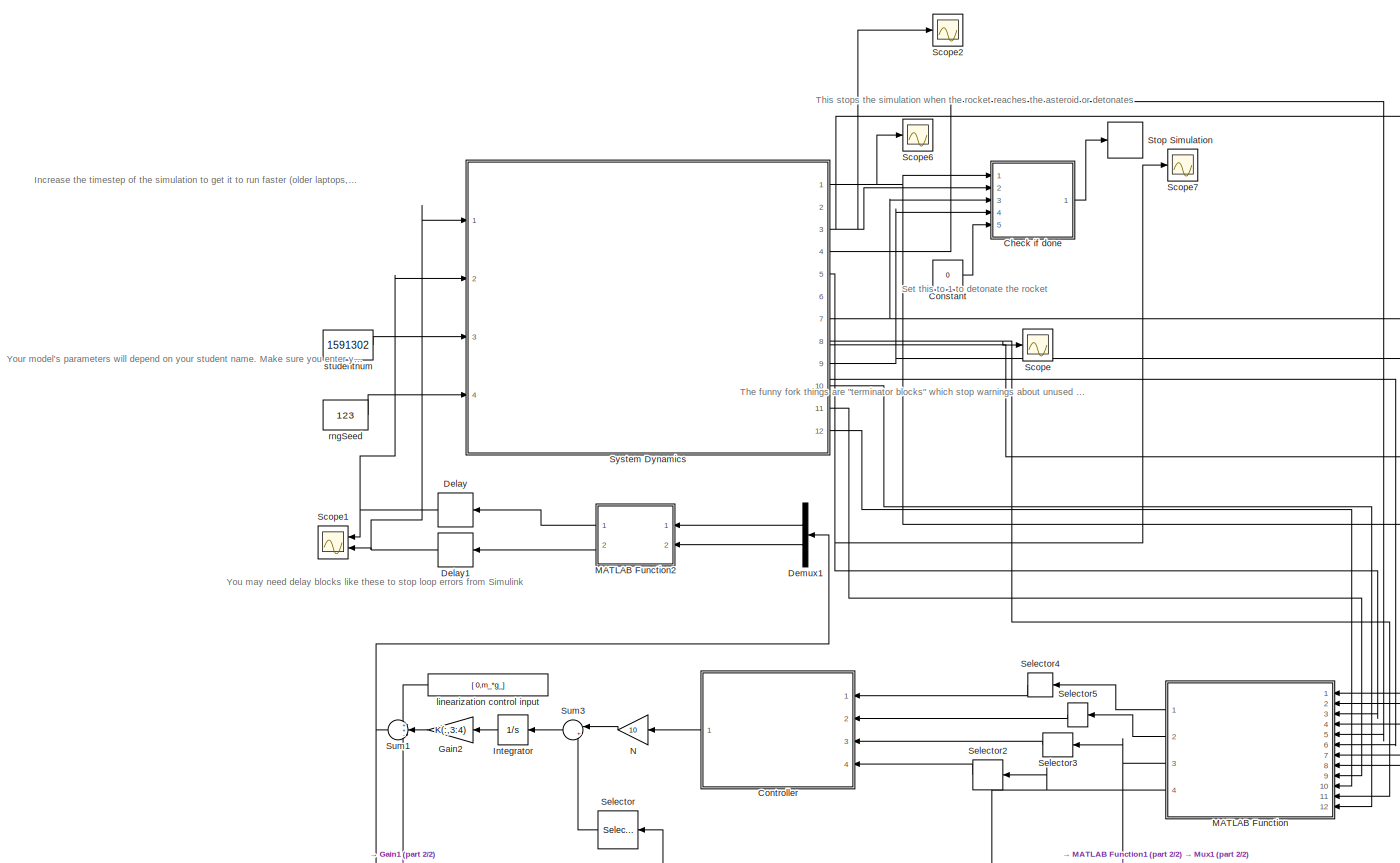
[diagram: root canvas - part 1/2, most of the canvas]
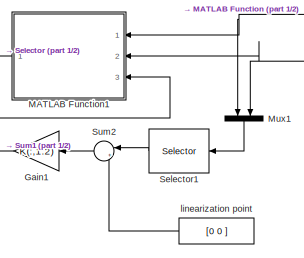
[diagram: root canvas - part 2/2, bottom center region]
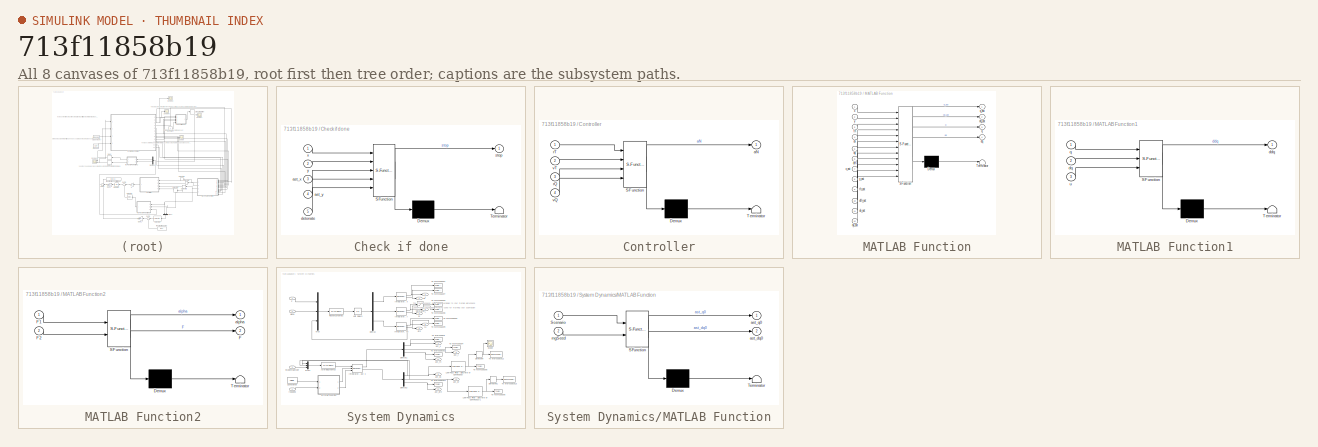
[diagram: thumbnail index - all 8 canvases of the model, root first then tree order]
MODEL slx_713f11858b19
KIND model
CONFIG AbsTol = auto
CONFIG EnableMultiTasking = off
CONFIG FixedStep = 0.001
CONFIG MaxStep = auto
CONFIG MinStep = auto
CONFIG RelTol = 1e-3
CONFIG SampleTimeConstraint = Unconstrained
CONFIG Solver = ode4
CONFIG SolverName = ode4
CONFIG StartTime = 0.0
CONFIG StopTime = 45
BLOCK [SubSystem] Check if done
  ErrorFcn = Stateflow.Translate.translate
  PermitHierarchicalResolution = ExplicitOnly
  Ports = [5, 1]
  RequestExecContextInheritance = off
  SFBlockType = MATLAB Function
  TreatAsAtomicUnit = on
BLOCK [Demux] Check if done/ Demux 
  Outputs = 1
  Ports = [1, 1]
BLOCK [S-Function] Check if done/ SFunction 
  EnableBusSupport = on
  FunctionName = sf_sfun
  PortCounts = [5 2]
  Ports = [5, 2]
  SFcnIsStateOwnerBlock = off
  SFunctionDeploymentMode = off
  Tag = Stateflow S-Function AsteroidImpact_2018a_original 4
BLOCK [Terminator] Check if done/ Terminator 
BLOCK [Inport] Check if done/ast_x
  IconDisplay = Port number
  Port = 3
BLOCK [Inport] Check if done/ast_y
  IconDisplay = Port number
  Port = 4
BLOCK [Inport] Check if done/detonate
  IconDisplay = Port number
  Port = 5
BLOCK [Outport] Check if done/stop
  IconDisplay = Port number
BLOCK [Inport] Check if done/x
  IconDisplay = Port number
BLOCK [Inport] Check if done/y
  IconDisplay = Port number
  Port = 2
BLOCK [Constant] Constant
  Value = 0
BLOCK [SubSystem] Controller
  ErrorFcn = Stateflow.Translate.translate
  PermitHierarchicalResolution = ExplicitOnly
  Ports = [4, 1]
  RequestExecContextInheritance = off
  SFBlockType = MATLAB Function
  TreatAsAtomicUnit = on
BLOCK [Demux] Controller/ Demux 
  Outputs = 1
  Ports = [1, 1]
BLOCK [S-Function] Controller/ SFunction 
  EnableBusSupport = on
  FunctionName = sf_sfun
  PortCounts = [4 2]
  Ports = [4, 2]
  SFcnIsStateOwnerBlock = off
  SFunctionDeploymentMode = off
  Tag = Stateflow S-Function AsteroidImpact_2018a_original 2
BLOCK [Terminator] Controller/ Terminator 
BLOCK [Outport] Controller/aN
  IconDisplay = Port number
BLOCK [Inport] Controller/rQ
  IconDisplay = Port number
  Port = 3
BLOCK [Inport] Controller/rT
  IconDisplay = Port number
BLOCK [Inport] Controller/vQ
  IconDisplay = Port number
  Port = 4
BLOCK [Inport] Controller/vT
  IconDisplay = Port number
  Port = 2
BLOCK [Delay] Delay
  DelayLength = 1
  InitialCondition = 0
  InputPortMap = u0
  Ports = [1, 1]
BLOCK [Delay] Delay1
  DelayLength = 1
  InitialCondition = 10000
  InputPortMap = u0
  Ports = [1, 1]
BLOCK [Demux] Demux1
  DisplayOption = bar
  Outputs = 2
  Ports = [1, 2]
BLOCK [Gain] Gain1
  Gain = K(:,1:2)
  Multiplication = Matrix(K*u)
  OutDataTypeStr = Inherit: Inherit via internal rule
  ParamDataTypeStr = Inherit: Inherit via internal rule
  SaturateOnIntegerOverflow = off
BLOCK [Gain] Gain2
  Gain = K(:,3:4)
  Multiplication = Matrix(K*u)
  OutDataTypeStr = Inherit: Inherit via internal rule
  ParamDataTypeStr = Inherit: Inherit via internal rule
  SaturateOnIntegerOverflow = off
BLOCK [Integrator] Integrator
  Ports = [1, 1]
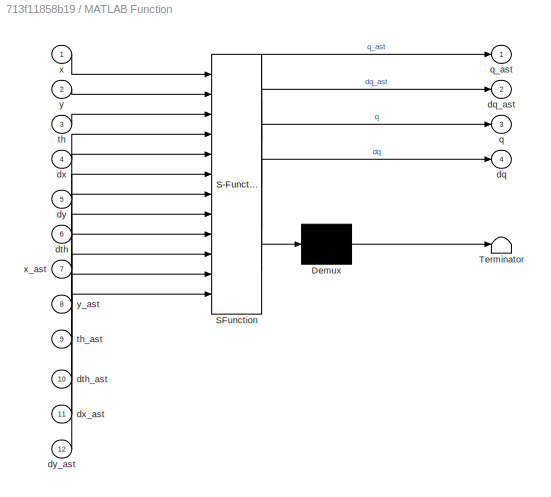
BLOCK [SubSystem] MATLAB Function
  ErrorFcn = Stateflow.Translate.translate
  PermitHierarchicalResolution = ExplicitOnly
  Ports = [12, 4]
  RequestExecContextInheritance = off
  SFBlockType = MATLAB Function
  TreatAsAtomicUnit = on
BLOCK [Demux] MATLAB Function/ Demux 
  Outputs = 1
  Ports = [1, 1]
BLOCK [S-Function] MATLAB Function/ SFunction 
  EnableBusSupport = on
  FunctionName = sf_sfun
  PortCounts = [12 5]
  Ports = [12, 5]
  SFcnIsStateOwnerBlock = off
  SFunctionDeploymentMode = off
  Tag = Stateflow S-Function AsteroidImpact_2018a_original 3
BLOCK [Terminator] MATLAB Function/ Terminator 
BLOCK [Outport] MATLAB Function/dq
  IconDisplay = Port number
  Port = 4
BLOCK [Outport] MATLAB Function/dq_ast
  IconDisplay = Port number
  Port = 2
BLOCK [Inport] MATLAB Function/dth
  IconDisplay = Port number
  Port = 6
BLOCK [Inport] MATLAB Function/dth_ast
  IconDisplay = Port number
  Port = 10
BLOCK [Inport] MATLAB Function/dx
  IconDisplay = Port number
  Port = 4
BLOCK [Inport] MATLAB Function/dx_ast
  IconDisplay = Port number
  Port = 11
BLOCK [Inport] MATLAB Function/dy
  IconDisplay = Port number
  Port = 5
BLOCK [Inport] MATLAB Function/dy_ast
  IconDisplay = Port number
  Port = 12
BLOCK [Outport] MATLAB Function/q
  IconDisplay = Port number
  Port = 3
BLOCK [Outport] MATLAB Function/q_ast
  IconDisplay = Port number
BLOCK [Inport] MATLAB Function/th
  IconDisplay = Port number
  Port = 3
BLOCK [Inport] MATLAB Function/th_ast
  IconDisplay = Port number
  Port = 9
BLOCK [Inport] MATLAB Function/x
  IconDisplay = Port number
BLOCK [Inport] MATLAB Function/x_ast
  IconDisplay = Port number
  Port = 7
BLOCK [Inport] MATLAB Function/y
  IconDisplay = Port number
  Port = 2
BLOCK [Inport] MATLAB Function/y_ast
  IconDisplay = Port number
  Port = 8
BLOCK [SubSystem] MATLAB Function1
  ErrorFcn = Stateflow.Translate.translate
  PermitHierarchicalResolution = ExplicitOnly
  Ports = [3, 1]
  RequestExecContextInheritance = off
  SFBlockType = MATLAB Function
  TreatAsAtomicUnit = on
BLOCK [Demux] MATLAB Function1/ Demux 
  Outputs = 1
  Ports = [1, 1]
BLOCK [S-Function] MATLAB Function1/ SFunction 
  EnableBusSupport = on
  FunctionName = sf_sfun
  PortCounts = [3 2]
  Ports = [3, 2]
  SFcnIsStateOwnerBlock = off
  SFunctionDeploymentMode = off
  Tag = Stateflow S-Function AsteroidImpact_2018a_original 5
BLOCK [Terminator] MATLAB Function1/ Terminator 
BLOCK [Outport] MATLAB Function1/ddq
  IconDisplay = Port number
BLOCK [Inport] MATLAB Function1/dq
  IconDisplay = Port number
  Port = 2
BLOCK [Inport] MATLAB Function1/q
  IconDisplay = Port number
BLOCK [Inport] MATLAB Function1/u
  IconDisplay = Port number
  Port = 3
BLOCK [SubSystem] MATLAB Function2
  ErrorFcn = Stateflow.Translate.translate
  PermitHierarchicalResolution = ExplicitOnly
  Ports = [2, 2]
  RequestExecContextInheritance = off
  SFBlockType = MATLAB Function
  TreatAsAtomicUnit = on
BLOCK [Demux] MATLAB Function2/ Demux 
  Outputs = 1
  Ports = [1, 1]
BLOCK [S-Function] MATLAB Function2/ SFunction 
  EnableBusSupport = on
  FunctionName = sf_sfun
  PortCounts = [2 3]
  Ports = [2, 3]
  SFcnIsStateOwnerBlock = off
  SFunctionDeploymentMode = off
  Tag = Stateflow S-Function AsteroidImpact_2018a_original 6
BLOCK [Terminator] MATLAB Function2/ Terminator 
BLOCK [Outport] MATLAB Function2/F
  IconDisplay = Port number
  Port = 2
BLOCK [Inport] MATLAB Function2/F1
  IconDisplay = Port number
BLOCK [Inport] MATLAB Function2/F2
  IconDisplay = Port number
  Port = 2
BLOCK [Outport] MATLAB Function2/alpha
  IconDisplay = Port number
BLOCK [Mux] Mux1
  DisplayOption = bar
  Inputs = 2
  Ports = [2, 1]
BLOCK [Gain] N
  Gain = 10
  OutDataTypeStr = Inherit: Inherit via internal rule
  ParamDataTypeStr = Inherit: Inherit via internal rule
  SaturateOnIntegerOverflow = off
BLOCK [Scope] Scope
  Floating = off
  NumInputPorts = 1
  Ports = [1]
  ScopeSpecificationString = Simulink.scopes.TimeScopeBlockCfg('CurrentConfiguration', extmgr.ConfigurationSet(extmgr.Configuration('Core','General UI',true),extmgr.Configuration('Core','Source UI',true),extmgr.Configuration('Sources','WiredSimulink',true),extmgr.Configuration('Visuals','Time Domain',true,'SerializedDisplays',{struct('MinYLimReal','134.6873','MaxYLimReal','187.70967','YLabelReal','','MinYLimMag','134.6873','M...<+1395ch>
BLOCK [Scope] Scope1
  Floating = off
  NumInputPorts = 2
  Ports = [2]
  ScopeSpecificationString = Simulink.scopes.TimeScopeBlockCfg('CurrentConfiguration', extmgr.ConfigurationSet(extmgr.Configuration('Core','General UI',true),extmgr.Configuration('Core','Source UI',true),extmgr.Configuration('Sources','WiredSimulink',true,'DataLoggingVariableName','ScopeData1'),extmgr.Configuration('Visuals','Time Domain',true,'SerializedDisplays',{struct('MinYLimReal','-3609.30994','MaxYLimReal','32480.85139...<+1428ch>
BLOCK [Scope] Scope2
  Floating = off
  NumInputPorts = 1
  Ports = [1]
  ScopeSpecificationString = Simulink.scopes.TimeScopeBlockCfg('CurrentConfiguration', extmgr.ConfigurationSet(extmgr.Configuration('Core','General UI',true),extmgr.Configuration('Core','Source UI',true),extmgr.Configuration('Sources','WiredSimulink',true,'DataLoggingVariableName','ScopeData1'),extmgr.Configuration('Visuals','Time Domain',true,'SerializedDisplays',{struct('MinYLimReal','-287.10112','MaxYLimReal','2583.91005',...<+1394ch>
BLOCK [Scope] Scope6
  Floating = off
  NumInputPorts = 1
  Ports = [1]
  ScopeSpecificationString = Simulink.scopes.TimeScopeBlockCfg('CurrentConfiguration', extmgr.ConfigurationSet(extmgr.Configuration('Core','General UI',true),extmgr.Configuration('Core','Source UI',true),extmgr.Configuration('Sources','WiredSimulink',true,'DataLoggingVariableName','ScopeData1'),extmgr.Configuration('Visuals','Time Domain',true,'SerializedDisplays',{struct('MinYLimReal','-119.27297','MaxYLimReal','1073.22528',...<+1394ch>
BLOCK [Scope] Scope7
  Floating = off
  NumInputPorts = 1
  Ports = [1]
  ScopeSpecificationString = Simulink.scopes.TimeScopeBlockCfg('CurrentConfiguration', extmgr.ConfigurationSet(extmgr.Configuration('Core','General UI',true),extmgr.Configuration('Core','Source UI',true),extmgr.Configuration('Sources','WiredSimulink',true,'DataLoggingVariableName','ScopeData2'),extmgr.Configuration('Visuals','Time Domain',true,'SerializedDisplays',{struct('MinYLimReal','-0.84078','MaxYLimReal','0.09342','YLab...<+1376ch>
BLOCK [Selector] Selector
  IndexOptions = Index vector (dialog)
  Indices = [1 2]
  InputPortWidth = 3
  OutputSizes = 1
  Ports = [1, 1]
BLOCK [Selector] Selector1
  IndexOptions = Index vector (dialog)
  Indices = [3 6]
  InputPortWidth = 6
  OutputSizes = 1
  Ports = [1, 1]
BLOCK [Selector] Selector2
  IndexOptions = Index vector (dialog)
  Indices = [1 2]
  InputPortWidth = 3
  OutputSizes = 1
  Ports = [1, 1]
BLOCK [Selector] Selector3
  IndexOptions = Index vector (dialog)
  Indices = [1 2]
  InputPortWidth = 3
  OutputSizes = 1
  Ports = [1, 1]
BLOCK [Selector] Selector4
  IndexOptions = Index vector (dialog)
  Indices = [1 2]
  InputPortWidth = 3
  OutputSizes = 1
  Ports = [1, 1]
BLOCK [Selector] Selector5
  IndexOptions = Index vector (dialog)
  Indices = [1 2]
  InputPortWidth = 3
  OutputSizes = 1
  Ports = [1, 1]
BLOCK [Stop] Stop Simulation
BLOCK [Sum] Sum1
  IconShape = round
  InputSameDT = off
  Inputs = ++-
  OutDataTypeStr = Inherit: Inherit via internal rule
  Ports = [3, 1]
  SaturateOnIntegerOverflow = off
BLOCK [Sum] Sum2
  IconShape = round
  InputSameDT = off
  Inputs = |+-
  OutDataTypeStr = Inherit: Inherit via internal rule
  Ports = [2, 1]
  SaturateOnIntegerOverflow = off
BLOCK [Sum] Sum3
  IconShape = round
  InputSameDT = off
  Inputs = |+-
  OutDataTypeStr = Inherit: Inherit via internal rule
  Ports = [2, 1]
  SaturateOnIntegerOverflow = off
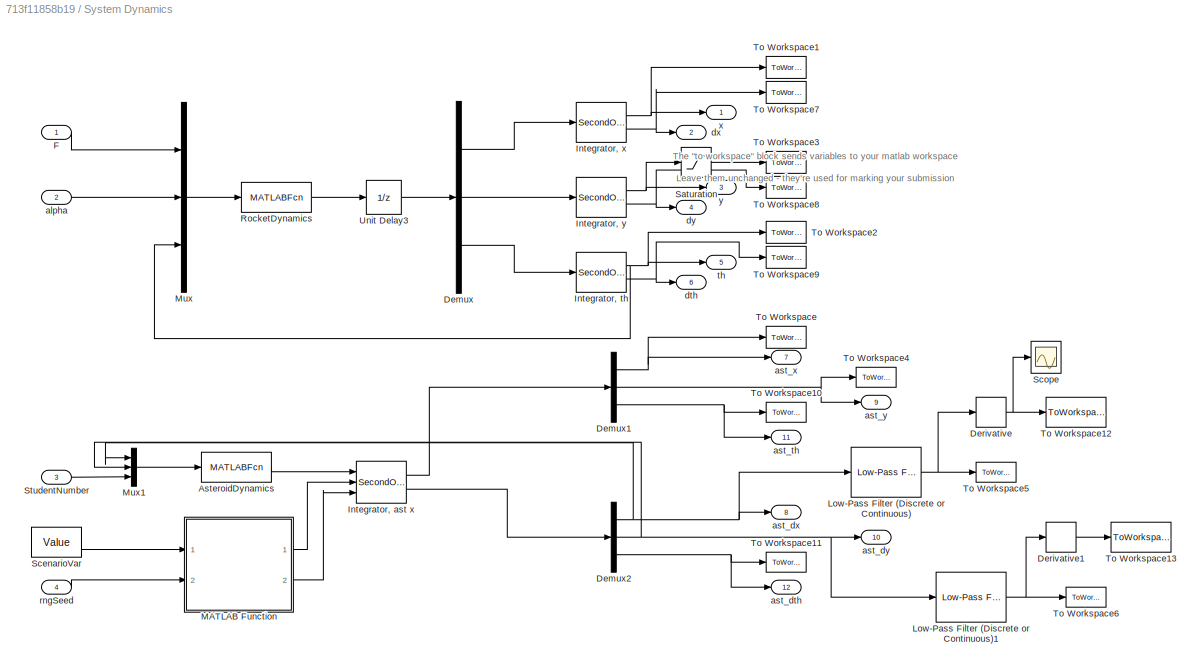
BLOCK [SubSystem] System Dynamics
  Ports = [4, 12]
  RequestExecContextInheritance = off
  TreatAsAtomicUnit = on
BLOCK [MATLABFcn] System Dynamics/AsteroidDynamics
  MATLABFcn = AsteroidDynamics
  OutputDimensions = 3
  Ports = [1, 1]
BLOCK [Demux] System Dynamics/Demux
  DisplayOption = bar
  Outputs = 3
  Ports = [1, 3]
BLOCK [Demux] System Dynamics/Demux1
  DisplayOption = bar
  Outputs = 3
  Ports = [1, 3]
BLOCK [Demux] System Dynamics/Demux2
  DisplayOption = bar
  Outputs = 3
  Ports = [1, 3]
BLOCK [Derivative] System Dynamics/Derivative
BLOCK [Derivative] System Dynamics/Derivative1
BLOCK [Inport] System Dynamics/F
  IconDisplay = Port number
BLOCK [SecondOrderIntegrator] System Dynamics/Integrator, ast x
  ICSourceDXDT = external
  ICSourceX = external
  ICX = x0
  Ports = [3, 2]
BLOCK [SecondOrderIntegrator] System Dynamics/Integrator, th
  ICDXDT = 0
  ICX = 0
  Ports = [1, 2]
BLOCK [SecondOrderIntegrator] System Dynamics/Integrator, x
  ICX = 0
  Ports = [1, 2]
BLOCK [SecondOrderIntegrator] System Dynamics/Integrator, y
  ICX = 0
  Ports = [1, 2]
BLOCK [Reference] System Dynamics/Low-Pass Filter (Discrete or Continuous)  REF=eeGeneralControl/Low-Pass Filter
(Discrete or Continuous)
  Ports = [1, 1]
  SourceBlock = eeGeneralControl/Low-Pass Filter\n(Discrete or Continuous)
  SourceProductBaseCode = PS
  SourceProductName = Simscape Electrical
  SourceType = Low-Pass Filter (Discrete or Continuous)
BLOCK [Reference] System Dynamics/Low-Pass Filter (Discrete or Continuous)1  REF=eeGeneralControl/Low-Pass Filter
(Discrete or Continuous)
  Ports = [1, 1]
  SourceBlock = eeGeneralControl/Low-Pass Filter\n(Discrete or Continuous)
  SourceProductBaseCode = PS
  SourceProductName = Simscape Electrical
  SourceType = Low-Pass Filter (Discrete or Continuous)
BLOCK [SubSystem] System Dynamics/MATLAB Function
  ErrorFcn = Stateflow.Translate.translate
  PermitHierarchicalResolution = ExplicitOnly
  Ports = [2, 2]
  RequestExecContextInheritance = off
  SFBlockType = MATLAB Function
  TreatAsAtomicUnit = on
BLOCK [Demux] System Dynamics/MATLAB Function/ Demux 
  Outputs = 1
  Ports = [1, 1]
BLOCK [S-Function] System Dynamics/MATLAB Function/ SFunction 
  EnableBusSupport = on
  FunctionName = sf_sfun
  PortCounts = [2 3]
  Ports = [2, 3]
  SFcnIsStateOwnerBlock = off
  SFunctionDeploymentMode = off
  Tag = Stateflow S-Function AsteroidImpact_2018a_original 1
BLOCK [Terminator] System Dynamics/MATLAB Function/ Terminator 
BLOCK [Inport] System Dynamics/MATLAB Function/Scenario
  IconDisplay = Port number
BLOCK [Outport] System Dynamics/MATLAB Function/ast_dq0
  IconDisplay = Port number
  Port = 2
BLOCK [Outport] System Dynamics/MATLAB Function/ast_q0
  IconDisplay = Port number
BLOCK [Inport] System Dynamics/MATLAB Function/rngSeed
  IconDisplay = Port number
  Port = 2
BLOCK [Mux] System Dynamics/Mux
  DisplayOption = bar
  Inputs = 3
  Ports = [3, 1]
BLOCK [Mux] System Dynamics/Mux1
  DisplayOption = bar
  Inputs = 3
  Ports = [3, 1]
BLOCK [MATLABFcn] System Dynamics/RocketDynamics
  MATLABFcn = RocketDynamics
  Output1D = off
  Ports = [1, 1]
BLOCK [Saturate] System Dynamics/Saturation
  InputPortMap = u0
  LowerLimit = 0
  Ports = [1, 1]
  UpperLimit = 10000
BLOCK [Constant] System Dynamics/ScenarioVar
  Value = Value
BLOCK [Scope] System Dynamics/Scope
  Floating = off
  NumInputPorts = 1
  Ports = [1]
  ScopeSpecificationString = Simulink.scopes.TimeScopeBlockCfg('CurrentConfiguration', extmgr.ConfigurationSet(extmgr.Configuration('Core','General UI',true),extmgr.Configuration('Core','Source UI',true),extmgr.Configuration('Sources','WiredSimulink',true,'DataLoggingVariableName','ScopeData1'),extmgr.Configuration('Visuals','Time Domain',true,'SerializedDisplays',{struct('MinYLimReal','-2.10989','MaxYLimReal','0.23443','YLab...<+1398ch>
BLOCK [Inport] System Dynamics/StudentNumber
  IconDisplay = Port number
  Port = 3
BLOCK [ToWorkspace] System Dynamics/To Workspace
  FixptAsFi = on
  MaxDataPoints = inf
  Ports = [1]
  SampleTime = -1
  VariableName = ast_x
BLOCK [ToWorkspace] System Dynamics/To Workspace1
  FixptAsFi = on
  MaxDataPoints = inf
  Ports = [1]
  SampleTime = -1
  VariableName = x
BLOCK [ToWorkspace] System Dynamics/To Workspace10
  FixptAsFi = on
  MaxDataPoints = inf
  Ports = [1]
  SampleTime = -1
  VariableName = ast_th
BLOCK [ToWorkspace] System Dynamics/To Workspace11
  FixptAsFi = on
  MaxDataPoints = inf
  Ports = [1]
  SampleTime = -1
  VariableName = ast_dth
BLOCK [ToWorkspace] System Dynamics/To Workspace12
  FixptAsFi = on
  MaxDataPoints = inf
  Ports = [1]
  SampleTime = -1
  SaveFormat = Timeseries
  VariableName = ast_ddx
BLOCK [ToWorkspace] System Dynamics/To Workspace13
  FixptAsFi = on
  MaxDataPoints = inf
  Ports = [1]
  SampleTime = -1
  SaveFormat = Timeseries
  VariableName = ast_ddy
BLOCK [ToWorkspace] System Dynamics/To Workspace2
  FixptAsFi = on
  MaxDataPoints = inf
  Ports = [1]
  SampleTime = -1
  VariableName = th
BLOCK [ToWorkspace] System Dynamics/To Workspace3
  FixptAsFi = on
  MaxDataPoints = inf
  Ports = [1]
  SampleTime = -1
  VariableName = y
BLOCK [ToWorkspace] System Dynamics/To Workspace4
  FixptAsFi = on
  MaxDataPoints = inf
  Ports = [1]
  SampleTime = -1
  VariableName = ast_y
BLOCK [ToWorkspace] System Dynamics/To Workspace5
  FixptAsFi = on
  MaxDataPoints = inf
  Ports = [1]
  SampleTime = -1
  VariableName = ast_dx
BLOCK [ToWorkspace] System Dynamics/To Workspace6
  FixptAsFi = on
  MaxDataPoints = inf
  Ports = [1]
  SampleTime = -1
  VariableName = ast_dy
BLOCK [ToWorkspace] System Dynamics/To Workspace7
  FixptAsFi = on
  MaxDataPoints = inf
  Ports = [1]
  SampleTime = -1
  VariableName = dx
BLOCK [ToWorkspace] System Dynamics/To Workspace8
  FixptAsFi = on
  MaxDataPoints = inf
  Ports = [1]
  SampleTime = -1
  VariableName = dy
BLOCK [ToWorkspace] System Dynamics/To Workspace9
  FixptAsFi = on
  MaxDataPoints = inf
  Ports = [1]
  SampleTime = -1
  VariableName = dth
BLOCK [UnitDelay] System Dynamics/Unit Delay3
  HasFrameUpgradeWarning = on
  SampleTime = -1
BLOCK [Inport] System Dynamics/alpha
  IconDisplay = Port number
  Port = 2
BLOCK [Outport] System Dynamics/ast_dth
  IconDisplay = Port number
  Port = 12
  PortDimensions = 1
BLOCK [Outport] System Dynamics/ast_dx
  IconDisplay = Port number
  Port = 8
  PortDimensions = 1
BLOCK [Outport] System Dynamics/ast_dy
  IconDisplay = Port number
  Port = 10
  PortDimensions = 1
BLOCK [Outport] System Dynamics/ast_th
  IconDisplay = Port number
  Port = 11
  PortDimensions = 1
BLOCK [Outport] System Dynamics/ast_x
  IconDisplay = Port number
  Port = 7
  PortDimensions = 1
BLOCK [Outport] System Dynamics/ast_y
  IconDisplay = Port number
  Port = 9
  PortDimensions = 1
BLOCK [Outport] System Dynamics/dth
  IconDisplay = Port number
  Port = 6
  PortDimensions = 1
BLOCK [Outport] System Dynamics/dx
  IconDisplay = Port number
  Port = 2
  PortDimensions = 1
BLOCK [Outport] System Dynamics/dy
  IconDisplay = Port number
  Port = 4
  PortDimensions = 1
BLOCK [Inport] System Dynamics/rngSeed
  IconDisplay = Port number
  Port = 4
BLOCK [Outport] System Dynamics/th
  IconDisplay = Port number
  Port = 5
  PortDimensions = 1
BLOCK [Outport] System Dynamics/x
  IconDisplay = Port number
  PortDimensions = 1
BLOCK [Outport] System Dynamics/y
  IconDisplay = Port number
  Port = 3
  PortDimensions = 1
BLOCK [Constant] linearization control input
  Value = [ 0,m_*g_]
BLOCK [Constant] linearization point
  Value = [0 0 ]
BLOCK [Constant] rngSeed
  Value = 123
BLOCK [Constant] studentnum
  Value = 1591302
ANNOTATION (root): Increase the timestep of the simulation to get it to run faster (older laptops, etc) or decrease it to get less lag for the (discrete parts of) your controller (higher sampling rate)
ANNOTATION (root): Set this to 1 to detonate the rocket
ANNOTATION (root): The funny fork things are "terminator blocks" which stop warnings about unused output blocks. Remove them when you need those ports
ANNOTATION (root): This stops the simulation when the rocket reaches the asteroid or detonates
ANNOTATION (root): You may need delay blocks like these to stop loop errors from Simulink
ANNOTATION (root): Your model's parameters will depend on your student name. Make sure you enter yours correctly
ANNOTATION System Dynamics: The "to workspace" block sends variables to your matlab workspace Leave them unchanged - they're used for marking your submission
LINE Check if done:1 -> Stop Simulation:1
LINE Constant:1 -> Check if done:5
LINE Controller:1 -> N:1
NET Delay1:1 -> Scope1:2, System Dynamics:1
NET Delay:1 -> Scope1:1, System Dynamics:2
LINE Demux1:1 -> MATLAB Function2:1
LINE Demux1:2 -> MATLAB Function2:2
LINE Gain1:1 -> Sum1:3
LINE Gain2:1 -> Sum1:2
LINE Integrator:1 -> Gain2:1
LINE MATLAB Function1:1 -> Selector:1
LINE MATLAB Function2:1 -> Delay:1
LINE MATLAB Function2:2 -> Delay1:1
LINE MATLAB Function:1 -> Selector4:1
LINE MATLAB Function:2 -> Selector5:1
NET MATLAB Function:3 -> MATLAB Function1:1, Mux1:1, Selector3:1
NET MATLAB Function:4 -> MATLAB Function1:2, Mux1:2, Selector2:1
LINE Mux1:1 -> Selector1:1
LINE N:1 -> Sum3:1
LINE Selector1:1 -> Sum2:1
LINE Selector2:1 -> Controller:4
LINE Selector3:1 -> Controller:3
LINE Selector4:1 -> Controller:1
LINE Selector5:1 -> Controller:2
LINE Selector:1 -> Sum3:2
NET Sum1:1 -> Demux1:1, MATLAB Function1:3
LINE Sum2:1 -> Gain1:1
LINE Sum3:1 -> Integrator:1
LINE System Dynamics/AsteroidDynamics:1 -> System Dynamics/Integrator, ast x:1
NET System Dynamics/Demux1:1 -> System Dynamics/To Workspace:1, System Dynamics/ast_x:1
NET System Dynamics/Demux1:2 -> System Dynamics/To Workspace4:1, System Dynamics/ast_y:1
NET System Dynamics/Demux1:3 -> System Dynamics/To Workspace10:1, System Dynamics/ast_th:1
NET System Dynamics/Demux2:1 -> System Dynamics/Low-Pass Filter (Discrete or Continuous):1, System Dynamics/Mux1:1, System Dynamics/ast_dx:1
NET System Dynamics/Demux2:2 -> System Dynamics/Low-Pass Filter (Discrete or Continuous)1:1, System Dynamics/Mux1:2, System Dynamics/ast_dy:1
NET System Dynamics/Demux2:3 -> System Dynamics/To Workspace11:1, System Dynamics/ast_dth:1
LINE System Dynamics/Demux:1 -> System Dynamics/Integrator, x:1
LINE System Dynamics/Demux:2 -> System Dynamics/Integrator, y:1
LINE System Dynamics/Demux:3 -> System Dynamics/Integrator, th:1
LINE System Dynamics/Derivative1:1 -> System Dynamics/To Workspace13:1
NET System Dynamics/Derivative:1 -> System Dynamics/Scope:1, System Dynamics/To Workspace12:1
LINE System Dynamics/F:1 -> System Dynamics/Mux:1
LINE System Dynamics/Integrator, ast x:1 -> System Dynamics/Demux1:1
LINE System Dynamics/Integrator, ast x:2 -> System Dynamics/Demux2:1
NET System Dynamics/Integrator, th:1 -> System Dynamics/Mux:3, System Dynamics/To Workspace2:1, System Dynamics/th:1
NET System Dynamics/Integrator, th:2 -> System Dynamics/To Workspace9:1, System Dynamics/dth:1
NET System Dynamics/Integrator, x:1 -> System Dynamics/To Workspace1:1, System Dynamics/x:1
NET System Dynamics/Integrator, x:2 -> System Dynamics/To Workspace7:1, System Dynamics/dx:1
NET System Dynamics/Integrator, y:1 -> System Dynamics/Saturation:1, System Dynamics/y:1
NET System Dynamics/Integrator, y:2 -> System Dynamics/To Workspace8:1, System Dynamics/dy:1
NET System Dynamics/Low-Pass Filter (Discrete or Continuous)1:1 -> System Dynamics/Derivative1:1, System Dynamics/To Workspace6:1
NET System Dynamics/Low-Pass Filter (Discrete or Continuous):1 -> System Dynamics/Derivative:1, System Dynamics/To Workspace5:1
LINE System Dynamics/MATLAB Function:1 -> System Dynamics/Integrator, ast x:2
LINE System Dynamics/MATLAB Function:2 -> System Dynamics/Integrator, ast x:3
LINE System Dynamics/Mux1:1 -> System Dynamics/AsteroidDynamics:1
LINE System Dynamics/Mux:1 -> System Dynamics/RocketDynamics:1
LINE System Dynamics/RocketDynamics:1 -> System Dynamics/Unit Delay3:1
LINE System Dynamics/Saturation:1 -> System Dynamics/To Workspace3:1
LINE System Dynamics/ScenarioVar:1 -> System Dynamics/MATLAB Function:1
LINE System Dynamics/StudentNumber:1 -> System Dynamics/Mux1:3
LINE System Dynamics/Unit Delay3:1 -> System Dynamics/Demux:1
LINE System Dynamics/alpha:1 -> System Dynamics/Mux:2
LINE System Dynamics/rngSeed:1 -> System Dynamics/MATLAB Function:2
NET System Dynamics:1 -> Check if done:1, MATLAB Function:1, Scope6:1
LINE System Dynamics:10 -> MATLAB Function:12
LINE System Dynamics:11 -> MATLAB Function:9
LINE System Dynamics:12 -> MATLAB Function:10
LINE System Dynamics:2 -> MATLAB Function:4
NET System Dynamics:3 -> Check if done:2, MATLAB Function:2, Scope2:1
LINE System Dynamics:4 -> MATLAB Function:5
NET System Dynamics:5 -> MATLAB Function:3, Scope7:1
LINE System Dynamics:6 -> MATLAB Function:6
NET System Dynamics:7 -> Check if done:3, MATLAB Function:7
NET System Dynamics:8 -> MATLAB Function:11, Scope:1
NET System Dynamics:9 -> Check if done:4, MATLAB Function:8
LINE linearization control input:1 -> Sum1:1
LINE linearization point:1 -> Sum2:2
LINE rngSeed:1 -> System Dynamics:4
LINE studentnum:1 -> System Dynamics:3
note: NET lines group one-source signal fan-out (src -> all destinations, sorted); 1:1 wires keep LINE
CHART System Dynamics/MATLAB Function states=1 transitions=1
  STATE_LABEL 'eML_blk_kernel()'
  STATE_LABEL 'SCRIPT:\nfunction [ast_q0, ast_dq0] = fcn(Scenario, rngSeed)\nrng(rngSeed);\nif (Scenario == 1)\n    x0 = -3000;\n    y0 =  5000;\n    th0 =   0;\n    dx0 = 182;\n    dy0 = 0;\n    dth0 = 0;\n\nelseif (Scenario == 2)\n    x0 = -2000 + rand_within_plus_minus(100);\n    y0 = 4000 + rand_within_plus_minus(100); \n    th0 = 0;\n    dx0 = 170;\n    dy0 = 0;\n    dth0 = 0.1;\n\n\nelseif (Scenario == 3)\n    x0 = -2500;\n    ...<+422ch>'
CHART Controller states=1 transitions=1
  STATE_LABEL 'eML_blk_kernel()'
  STATE_LABEL 'SCRIPT:\nfunction aN = pNav(rT, vT, rQ, vQ)\n% this produces an acceleration which the controller should track\nR = rT - rQ;\nRtemp = [R; 0];\nVr = vT - vQ;\nVtemp = [Vr; 0];\nomega = cross(Rtemp, Vtemp) / dot(Rtemp, Rtemp);\ntemp = cross(Vtemp, omega);\naN = temp(1:2);'
CHART MATLAB Function states=1 transitions=1
  STATE_LABEL 'eML_blk_kernel()'
  STATE_LABEL 'SCRIPT:\nfunction [q_ast, dq_ast, q, dq] = fcn(x,y,th,dx,dy,dth,x_ast, y_ast,th_ast,dth_ast, dx_ast, dy_ast)\n\nq_ast = [x_ast; y_ast;th_ast];\ndq_ast = [dx_ast; dy_ast;dth_ast]\nq = [x;y;th];\ndq = [dx;dy;dth];\n'
CHART Check if done states=1 transitions=1
  STATE_LABEL 'eML_blk_kernel()'
  STATE_LABEL 'SCRIPT:\nfunction stop = fcn(x, y, ast_x, ast_y, detonate)\n    % given the signal to detonate\n    if detonate == 1\n        stop = 1;\n\n    % rocket has hit the asteroid\n    elseif norm([x; y] - [ast_x; ast_y]) < 100\n        stop = 1;\n    \n    % rocket has hit the ground OR asteroid is close to they city\n    elseif y < 0 || ast_y < 200\n        stop = 1;\n    \n    else\n        stop = 0;\n    end\nend'
CHART MATLAB Function1 states=1 transitions=1
  STATE_LABEL 'eML_blk_kernel()'
  STATE_LABEL 'SCRIPT:\nfunction ddq = fcn(q, dq, u)\nm =  1000;\ng = 9.81;\nI =(1/12)*m*(15^2 + 5^2)+m*4^2;\n\nF1 = u(1);\nF2 = u(2);\n\nx = q(1);\ny = q(2);\nth = q(3);\n\ndx = dq(1);\ndy = dq(2);\ndth = dq(3);\n\nddq = [(F1*cos(th)-F2*sin(th))/m;(100*F2*cos(th)-981*m+100*F1*sin(th))/(100*m);7*F1/(2*I)];'
CHART MATLAB Function2 states=1 transitions=1
  STATE_LABEL 'eML_blk_kernel()'
  STATE_LABEL 'SCRIPT:\nfunction [alpha,F]= fcn(F1, F2)\nalpha = atan(-F1/F2);\nF = sqrt(F1^2 + F2^2);\n'
